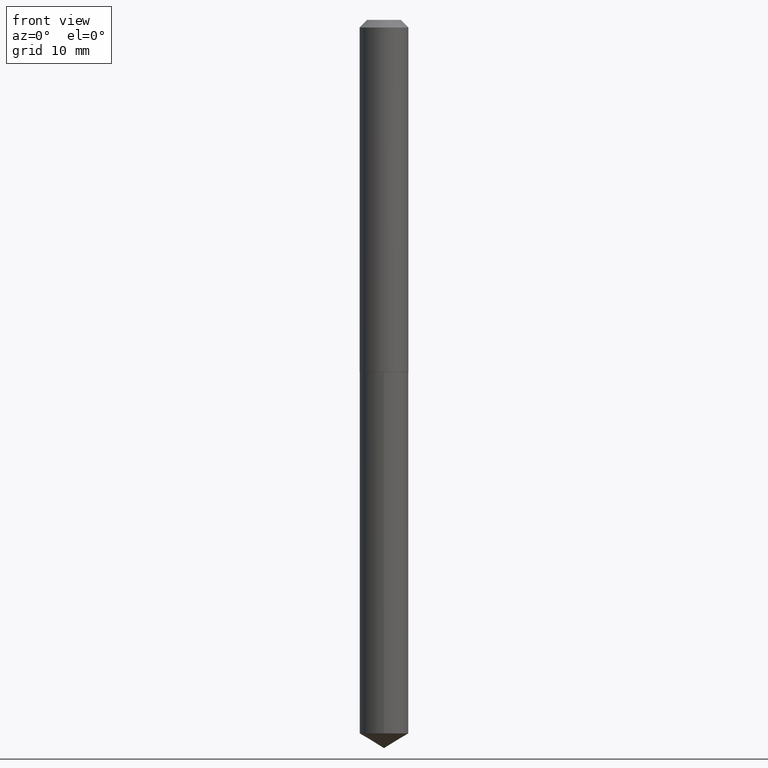
[diagram: clean part render]
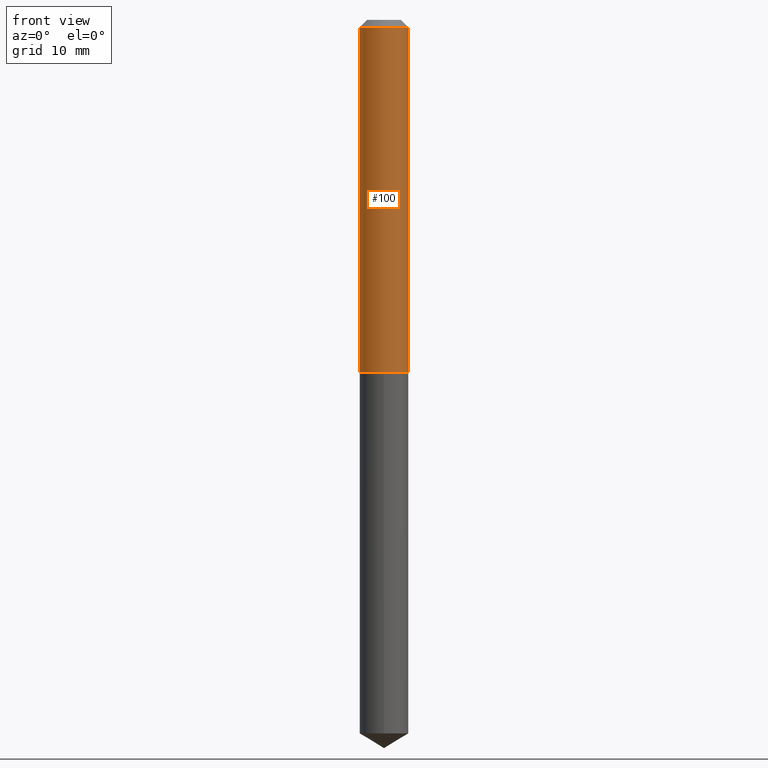
[diagram: same view with one face highlighted and labeled with its STEP entity id]
A machine part, front view. The second image highlights one B-rep face of the part: STEP entity #100.
In plain terms, the highlighted cylindrical surface (edge-blend (fillet) strip) has radius 2.5527 mm, axis along (-0, 0, 1).
Its self-contained STEP definition (entity closure, byte-faithful):
#2 = ORIENTED_EDGE ( 'NONE', *, *, #60, .F. ) ;
#17 = CIRCLE ( 'NONE', #73, 0.1005000000000000060 ) ;
#35 = VERTEX_POINT ( 'NONE', #368 ) ;
#36 = DIRECTION ( 'NONE',  ( -2.445468806185136597E-29, 3.491481338843145583E-15, 1.000000000000000000 ) ) ;
#37 = DIRECTION ( 'NONE',  ( -2.445468806185136877E-29, 3.491481338843145188E-15, 1.000000000000000000 ) ) ;
#39 = LINE ( 'NONE', #135, #221 ) ;
#41 = DIRECTION ( 'NONE',  ( 1.000000000000000000, -6.982962677686266711E-15, 4.876176775795935793E-29 ) ) ;
#54 = CARTESIAN_POINT ( 'NONE',  ( 3.547152503371541091E-29, -5.064393681991983801E-15, -1.450500000000000345 ) ) ;
#60 = EDGE_CURVE ( 'NONE', #265, #163, #17, .T. ) ;
#69 = CARTESIAN_POINT ( 'NONE',  ( 0.1005000000000001587, -5.766181431099454268E-15, -1.450500000000000345 ) ) ;
#73 = AXIS2_PLACEMENT_3D ( 'NONE', #223, #246, #228 ) ;
#100 = ADVANCED_FACE ( 'NONE', ( #341 ), #332, .T. ) ;
#109 = DIRECTION ( 'NONE',  ( -2.445468806185136597E-29, 3.491481338843145583E-15, 1.000000000000000000 ) ) ;
#121 = VECTOR ( 'NONE', #375, 39.37007874015748143 ) ;
#126 = ORIENTED_EDGE ( 'NONE', *, *, #329, .T. ) ;
#135 = CARTESIAN_POINT ( 'NONE',  ( -0.1005000000000000893, 7.140954494389013210E-16, -4.943529765706185016E-30 ) ) ;
#163 = VERTEX_POINT ( 'NONE', #365 ) ;
#172 = VERTEX_POINT ( 'NONE', #69 ) ;
#180 = AXIS2_PLACEMENT_3D ( 'NONE', #54, #109, #264 ) ;
#182 = EDGE_CURVE ( 'NONE', #35, #265, #39, .T. ) ;
#221 = VECTOR ( 'NONE', #37, 39.37007874015748143 ) ;
#222 = CARTESIAN_POINT ( 'NONE',  ( 0.000000000000000000, 0.000000000000000000, 0.000000000000000000 ) ) ;
#223 = CARTESIAN_POINT ( 'NONE',  ( 7.642090019328598283E-31, -1.091087918388489651E-16, -0.03125000000000019429 ) ) ;
#224 = ORIENTED_EDGE ( 'NONE', *, *, #182, .F. ) ;
#228 = DIRECTION ( 'NONE',  ( 1.000000000000000000, -6.982962677686266711E-15, 0.000000000000000000 ) ) ;
#230 = CARTESIAN_POINT ( 'NONE',  ( -0.1005000000000000060, -1.872655787476513947E-15, -0.03125000000000019429 ) ) ;
#238 = CARTESIAN_POINT ( 'NONE',  ( 0.1005000000000000893, -7.017877491074704671E-16, 4.900557659674919900E-30 ) ) ;
#246 = DIRECTION ( 'NONE',  ( -2.445468806185136597E-29, 3.491481338843145583E-15, 1.000000000000000000 ) ) ;
#264 = DIRECTION ( 'NONE',  ( 1.000000000000000000, -6.982962677686269077E-15, 0.000000000000000000 ) ) ;
#265 = VERTEX_POINT ( 'NONE', #230 ) ;
#280 = EDGE_LOOP ( 'NONE', ( #224, #390, #126, #2 ) ) ;
#283 = AXIS2_PLACEMENT_3D ( 'NONE', #222, #36, #41 ) ;
#329 = EDGE_CURVE ( 'NONE', #172, #163, #355, .T. ) ;
#332 = CYLINDRICAL_SURFACE ( 'NONE', #283, 0.1005000000000000893 ) ;
#341 = FACE_OUTER_BOUND ( 'NONE', #280, .T. ) ;
#355 = LINE ( 'NONE', #238, #121 ) ;
#358 = EDGE_CURVE ( 'NONE', #35, #172, #372, .T. ) ;
#365 = CARTESIAN_POINT ( 'NONE',  ( 0.1005000000000000060, -8.108965409463188774E-16, -0.03125000000000019429 ) ) ;
#368 = CARTESIAN_POINT ( 'NONE',  ( -0.1005000000000001587, -4.350298232553081297E-15, -1.450500000000000345 ) ) ;
#372 = CIRCLE ( 'NONE', #180, 0.1005000000000001587 ) ;
#375 = DIRECTION ( 'NONE',  ( -2.445468806185136877E-29, 3.491481338843145188E-15, 1.000000000000000000 ) ) ;
#390 = ORIENTED_EDGE ( 'NONE', *, *, #358, .T. ) ;